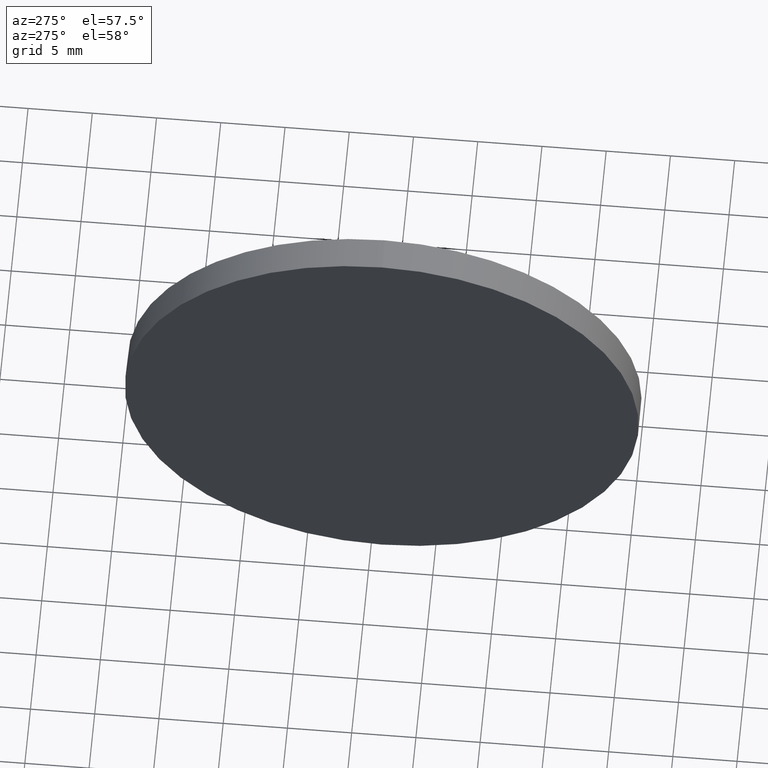
[diagram: clean part render]
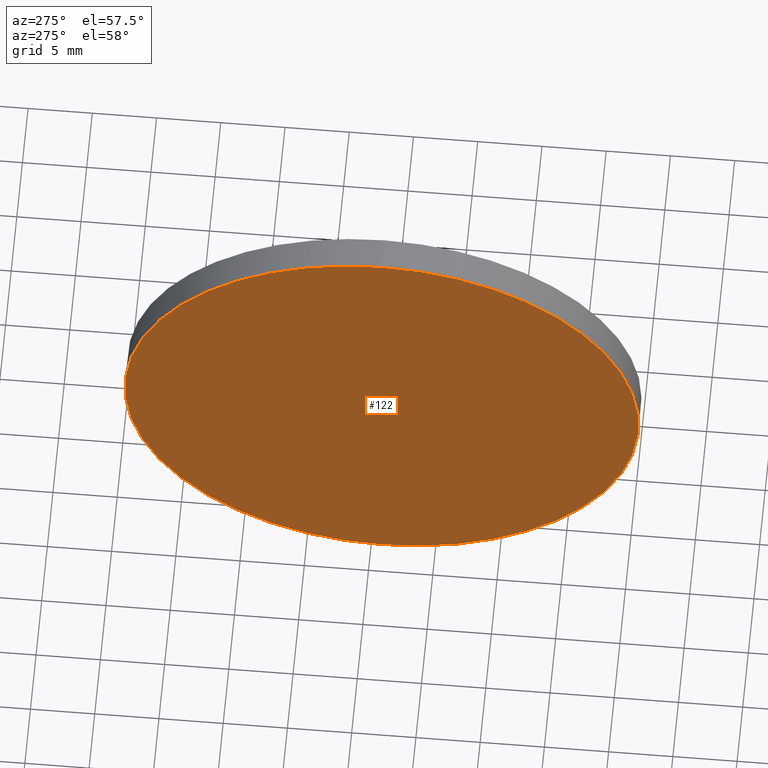
[diagram: same view with one face highlighted and labeled with its STEP entity id]
A machine part, auxiliary view. The second image highlights one B-rep face of the part: STEP entity #122.
In plain terms, the highlighted planar face has unit normal (1, 0, 0).
Its self-contained STEP definition (entity closure, byte-faithful):
#3 = ORIENTED_EDGE ( 'NONE', *, *, #150, .T. ) ;
#6 = AXIS2_PLACEMENT_3D ( 'NONE', #144, #112, #175 ) ;
#20 = PLANE ( 'NONE',  #103 ) ;
#22 = CARTESIAN_POINT ( 'NONE',  ( 881.9042952388408600, 269.1403647376604300, 19.99999999999996100 ) ) ;
#30 = CARTESIAN_POINT ( 'NONE',  ( 881.9042952388408600, 269.1403647376604300, 0.0000000000000000000 ) ) ;
#32 = DIRECTION ( 'NONE',  ( 0.0000000000000000000, 0.0000000000000000000, -1.000000000000000000 ) ) ;
#33 = EDGE_LOOP ( 'NONE', ( #3, #133 ) ) ;
#40 = CIRCLE ( 'NONE', #53, 19.99999999999996100 ) ;
#45 = DIRECTION ( 'NONE',  ( 0.0000000000000000000, 0.0000000000000000000, 1.000000000000000000 ) ) ;
#53 = AXIS2_PLACEMENT_3D ( 'NONE', #30, #157, #45 ) ;
#68 = VERTEX_POINT ( 'NONE', #169 ) ;
#75 = CIRCLE ( 'NONE', #6, 19.99999999999996100 ) ;
#93 = EDGE_CURVE ( 'NONE', #68, #181, #40, .T. ) ;
#103 = AXIS2_PLACEMENT_3D ( 'NONE', #104, #158, #32 ) ;
#104 = CARTESIAN_POINT ( 'NONE',  ( 881.9042952388408600, 269.1403647376604300, 0.0000000000000000000 ) ) ;
#110 = FACE_OUTER_BOUND ( 'NONE', #33, .T. ) ;
#112 = DIRECTION ( 'NONE',  ( -1.000000000000000000, -0.0000000000000000000, -0.0000000000000000000 ) ) ;
#122 = ADVANCED_FACE ( 'NONE', ( #110 ), #20, .F. ) ;
#133 = ORIENTED_EDGE ( 'NONE', *, *, #93, .T. ) ;
#144 = CARTESIAN_POINT ( 'NONE',  ( 881.9042952388408600, 269.1403647376604300, 0.0000000000000000000 ) ) ;
#150 = EDGE_CURVE ( 'NONE', #181, #68, #75, .T. ) ;
#157 = DIRECTION ( 'NONE',  ( -1.000000000000000000, -0.0000000000000000000, -0.0000000000000000000 ) ) ;
#158 = DIRECTION ( 'NONE',  ( 1.000000000000000000, 0.0000000000000000000, 0.0000000000000000000 ) ) ;
#169 = CARTESIAN_POINT ( 'NONE',  ( 881.9042952388408600, 269.1403647376604300, -19.99999999999996100 ) ) ;
#175 = DIRECTION ( 'NONE',  ( 0.0000000000000000000, 0.0000000000000000000, 1.000000000000000000 ) ) ;
#181 = VERTEX_POINT ( 'NONE', #22 ) ;